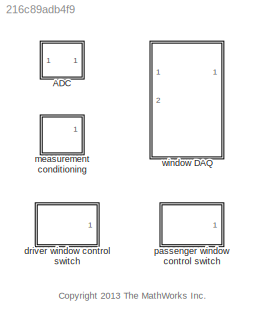
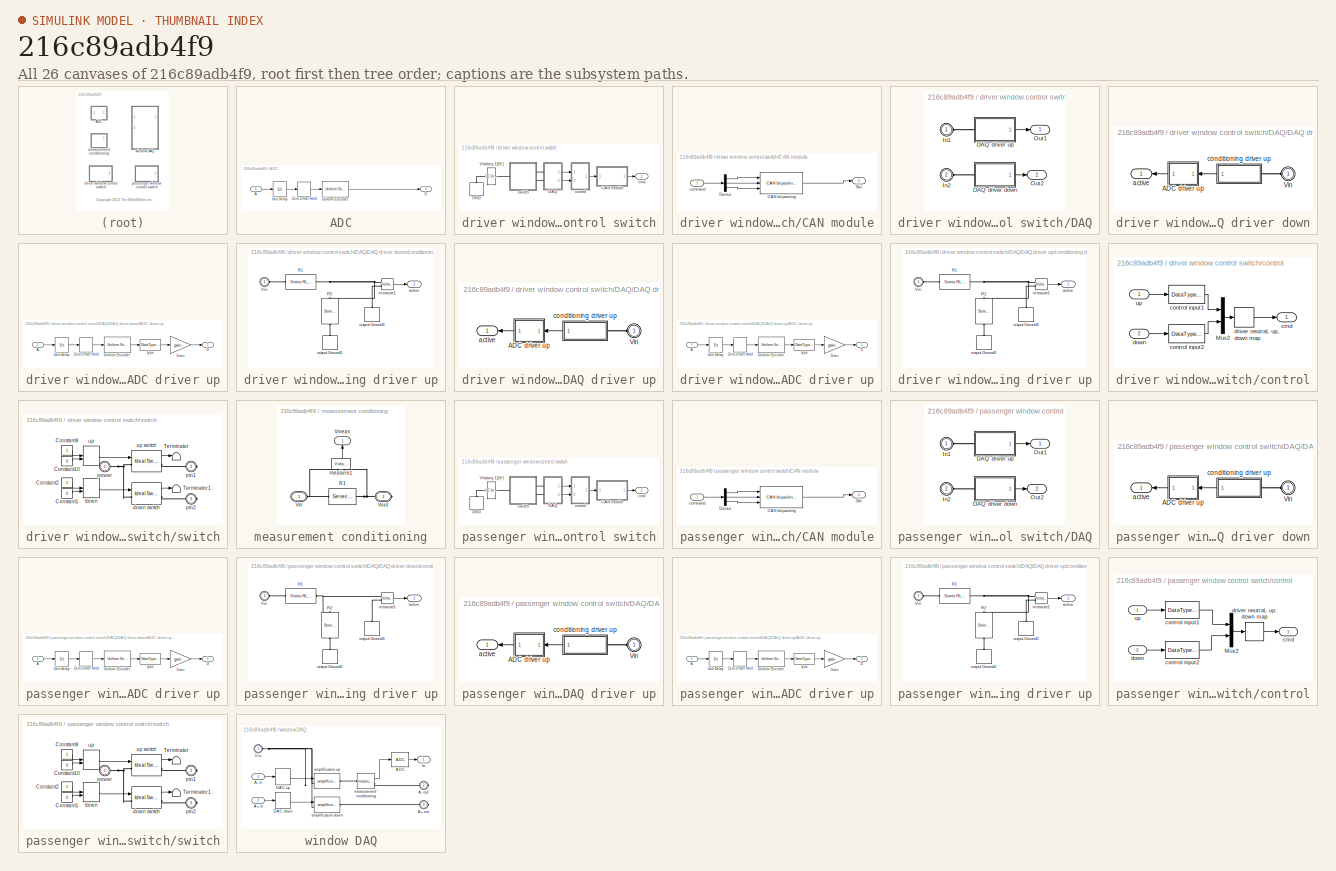
[diagram: thumbnail index - all 26 canvases of the model, root first then tree order]
MODEL slx_216c89adb4f9
KIND library
BLOCK [SubSystem] ADC
  Ports = [1, 1]
  RequestExecContextInheritance = off
BLOCK [Inport] ADC/A
  IconDisplay = Port number
BLOCK [Outport] ADC/D
  IconDisplay = Port number
BLOCK [Reference] ADC/Uniform Encoder  REF=dspquant2/Uniform
Encoder
  Ports = [1, 1]
  SourceBlock = dspquant2/Uniform\nEncoder
  SourceType = Uniform Encoder
  bits = bits
  otype = Signed integer
  peak = peak
BLOCK [UnitDelay] ADC/Unit Delay
  SampleTime = Td
BLOCK [ZeroOrderHold] ADC/Zero-Order Hold
  SampleTime = Ts
BLOCK [SubSystem] driver window control switch
  Ports = [0, 1]
  RequestExecContextInheritance = off
BLOCK [SubSystem] driver window control switch/CAN module
  Ports = [1, 1]
  RequestExecContextInheritance = off
BLOCK [Outport] driver window control switch/CAN module/3bit
  IconDisplay = Port number
BLOCK [Reference] driver window control switch/CAN module/CAN bit-packing   REF=slrtlib/CAN/Utilities/CAN bit-packing 
  Ports = [3, 1]
  SourceBlock = slrtlib/CAN/Utilities/CAN bit-packing
  SourceType = bit2double
  bitpatterns = { [0:0] [1:1] [2:2]}
BLOCK [Demux] driver window control switch/CAN module/Demux
  Outputs = 3
  Ports = [1, 3]
BLOCK [Inport] driver window control switch/CAN module/command
  IconDisplay = Port number
BLOCK [SubSystem] driver window control switch/DAQ
  Ports = [0, 2, 0, 0, 0, 2]
  RequestExecContextInheritance = off
BLOCK [SubSystem] driver window control switch/DAQ/DAQ driver down
  Ports = [0, 1, 0, 0, 0, 1]
  RequestExecContextInheritance = off
BLOCK [SubSystem] driver window control switch/DAQ/DAQ driver down/ADC driver up
  Ports = [1, 1]
  RequestExecContextInheritance = off
BLOCK [Inport] driver window control switch/DAQ/DAQ driver down/ADC driver up/A
  IconDisplay = Port number
BLOCK [Outport] driver window control switch/DAQ/DAQ driver down/ADC driver up/D
  IconDisplay = Port number
BLOCK [Gain] driver window control switch/DAQ/DAQ driver down/ADC driver up/Gain
  Gain = gain
BLOCK [Reference] driver window control switch/DAQ/DAQ driver down/ADC driver up/Uniform Encoder  REF=dspquant2/Uniform
Encoder
  Ports = [1, 1]
  SourceBlock = dspquant2/Uniform\nEncoder
  SourceType = Uniform Encoder
  bits = bits
  otype = Signed integer
  peak = peak
BLOCK [UnitDelay] driver window control switch/DAQ/DAQ driver down/ADC driver up/Unit Delay
  SampleTime = Td
BLOCK [ZeroOrderHold] driver window control switch/DAQ/DAQ driver down/ADC driver up/Zero-Order Hold
  SampleTime = Ts
BLOCK [DataTypeConversion] driver window control switch/DAQ/DAQ driver down/ADC driver up/type
  OutDataTypeStr = double
BLOCK [PMIOPort] driver window control switch/DAQ/DAQ driver down/Vin
  Port = 1
  Side = Left
BLOCK [Outport] driver window control switch/DAQ/DAQ driver down/active
  IconDisplay = Port number
BLOCK [SubSystem] driver window control switch/DAQ/DAQ driver down/conditioning driver up
  Ports = [0, 1, 0, 0, 0, 1]
  RequestExecContextInheritance = off
BLOCK [Reference] driver window control switch/DAQ/DAQ driver down/conditioning driver up/R1  REF=powerlib/Elements/Series RLC Branch
  BranchType = R
  Capacitance = 1.0
  Inductance = 1.0
  InitialCurrent = 0
  InitialVoltage = 0
  LConnTagsString = __new0
  Measurements = None
  Ports = [0, 0, 0, 0, 0, 1, 1]
  RConnTagsString = __new0
  Resistance = 6800
  SetiL0 = off
  Setx0 = off
  SourceBlock = powerlib/Elements/Series RLC Branch
  SourceType = Series RLC Branch
BLOCK [Reference] driver window control switch/DAQ/DAQ driver down/conditioning driver up/R2  REF=powerlib/Elements/Series RLC Branch
  BranchType = R
  Capacitance = 1.0
  Inductance = 1.0
  InitialCurrent = 0
  InitialVoltage = 0
  LConnTagsString = __new0
  Measurements = None
  Ports = [0, 0, 0, 0, 0, 1, 1]
  RConnTagsString = __new0
  Resistance = 4700
  SetiL0 = off
  Setx0 = off
  SourceBlock = powerlib/Elements/Series RLC Branch
  SourceType = Series RLC Branch
BLOCK [PMIOPort] driver window control switch/DAQ/DAQ driver down/conditioning driver up/Vin
  Port = 1
  Side = Left
BLOCK [Outport] driver window control switch/DAQ/DAQ driver down/conditioning driver up/active
  IconDisplay = Port number
BLOCK [Reference] driver window control switch/DAQ/DAQ driver down/conditioning driver up/measure1  REF=powerlib/Measurements/Voltage Measurement
  OutputType = Magnitude
  PSBequivalent = 0
  PhasorSimulation = off
  Ports = [0, 1, 0, 0, 0, 2]
  SourceBlock = powerlib/Measurements/Voltage Measurement
  SourceType = Voltage Measurement
BLOCK [PMComponent] driver window control switch/DAQ/DAQ driver down/conditioning driver up/output Ground2
  LConnTagsString = a
  LeftPortType = p1
  PhysicalDomain = powersysdomain
  Ports = [0, 0, 0, 0, 0, 1]
  RightPortType = p1
BLOCK [PMComponent] driver window control switch/DAQ/DAQ driver down/conditioning driver up/output Ground3
  LConnTagsString = a
  LeftPortType = p1
  PhysicalDomain = powersysdomain
  Ports = [0, 0, 0, 0, 0, 1]
  RightPortType = p1
BLOCK [SubSystem] driver window control switch/DAQ/DAQ driver up
  Ports = [0, 1, 0, 0, 0, 1]
  RequestExecContextInheritance = off
BLOCK [SubSystem] driver window control switch/DAQ/DAQ driver up/ADC driver up
  Ports = [1, 1]
  RequestExecContextInheritance = off
BLOCK [Inport] driver window control switch/DAQ/DAQ driver up/ADC driver up/A
  IconDisplay = Port number
BLOCK [Outport] driver window control switch/DAQ/DAQ driver up/ADC driver up/D
  IconDisplay = Port number
BLOCK [Gain] driver window control switch/DAQ/DAQ driver up/ADC driver up/Gain
  Gain = gain
BLOCK [Reference] driver window control switch/DAQ/DAQ driver up/ADC driver up/Uniform Encoder  REF=dspquant2/Uniform
Encoder
  Ports = [1, 1]
  SourceBlock = dspquant2/Uniform\nEncoder
  SourceType = Uniform Encoder
  bits = bits
  otype = Signed integer
  peak = peak
BLOCK [UnitDelay] driver window control switch/DAQ/DAQ driver up/ADC driver up/Unit Delay
  SampleTime = Td
BLOCK [ZeroOrderHold] driver window control switch/DAQ/DAQ driver up/ADC driver up/Zero-Order Hold
  SampleTime = Ts
BLOCK [DataTypeConversion] driver window control switch/DAQ/DAQ driver up/ADC driver up/type
  OutDataTypeStr = double
BLOCK [PMIOPort] driver window control switch/DAQ/DAQ driver up/Vin
  Port = 1
  Side = Left
BLOCK [Outport] driver window control switch/DAQ/DAQ driver up/active
  IconDisplay = Port number
BLOCK [SubSystem] driver window control switch/DAQ/DAQ driver up/conditioning driver up
  Ports = [0, 1, 0, 0, 0, 1]
  RequestExecContextInheritance = off
BLOCK [Reference] driver window control switch/DAQ/DAQ driver up/conditioning driver up/R1  REF=powerlib/Elements/Series RLC Branch
  BranchType = R
  Capacitance = 1.0
  Inductance = 1.0
  InitialCurrent = 0
  InitialVoltage = 0
  LConnTagsString = __new0
  Measurements = None
  Ports = [0, 0, 0, 0, 0, 1, 1]
  RConnTagsString = __new0
  Resistance = 6800
  SetiL0 = off
  Setx0 = off
  SourceBlock = powerlib/Elements/Series RLC Branch
  SourceType = Series RLC Branch
BLOCK [Reference] driver window control switch/DAQ/DAQ driver up/conditioning driver up/R2  REF=powerlib/Elements/Series RLC Branch
  BranchType = R
  Capacitance = 1.0
  Inductance = 1.0
  InitialCurrent = 0
  InitialVoltage = 0
  LConnTagsString = __new0
  Measurements = None
  Ports = [0, 0, 0, 0, 0, 1, 1]
  RConnTagsString = __new0
  Resistance = 4700
  SetiL0 = off
  Setx0 = off
  SourceBlock = powerlib/Elements/Series RLC Branch
  SourceType = Series RLC Branch
BLOCK [PMIOPort] driver window control switch/DAQ/DAQ driver up/conditioning driver up/Vin
  Port = 1
  Side = Left
BLOCK [Outport] driver window control switch/DAQ/DAQ driver up/conditioning driver up/active
  IconDisplay = Port number
BLOCK [Reference] driver window control switch/DAQ/DAQ driver up/conditioning driver up/measure1  REF=powerlib/Measurements/Voltage Measurement
  OutputType = Magnitude
  PSBequivalent = 0
  PhasorSimulation = off
  Ports = [0, 1, 0, 0, 0, 2]
  SourceBlock = powerlib/Measurements/Voltage Measurement
  SourceType = Voltage Measurement
BLOCK [PMComponent] driver window control switch/DAQ/DAQ driver up/conditioning driver up/output Ground2
  LConnTagsString = a
  LeftPortType = p1
  PhysicalDomain = powersysdomain
  Ports = [0, 0, 0, 0, 0, 1]
  RightPortType = p1
BLOCK [PMComponent] driver window control switch/DAQ/DAQ driver up/conditioning driver up/output Ground3
  LConnTagsString = a
  LeftPortType = p1
  PhysicalDomain = powersysdomain
  Ports = [0, 0, 0, 0, 0, 1]
  RightPortType = p1
BLOCK [PMIOPort] driver window control switch/DAQ/In1
  Port = 1
  Side = Left
BLOCK [PMIOPort] driver window control switch/DAQ/In2
  Port = 2
  Side = Left
BLOCK [Outport] driver window control switch/DAQ/Out1
  IconDisplay = Port number
BLOCK [Outport] driver window control switch/DAQ/Out2
  IconDisplay = Port number
  Port = 2
BLOCK [PMComponent] driver window control switch/GND
  LConnTagsString = a
  LeftPortType = p1
  PhysicalDomain = powersysdomain
  Ports = [0, 0, 0, 0, 0, 1]
  RightPortType = p1
BLOCK [Reference] driver window control switch/Vbattery 12[V]  REF=powerlib/Electrical
Sources/DC Voltage Source
  Amplitude = 12
  Measurements = None
  Ports = [0, 0, 0, 0, 0, 1, 1]
  SourceBlock = powerlib/Electrical\nSources/DC Voltage Source
  SourceType = DC Voltage Source
BLOCK [Outport] driver window control switch/cmd
  IconDisplay = Port number
BLOCK [SubSystem] driver window control switch/control
  Ports = [2, 1]
  RequestExecContextInheritance = off
BLOCK [Mux] driver window control switch/control/Mux2
  DisplayOption = bar
  Inputs = 2
  Ports = [2, 1]
BLOCK [Outport] driver window control switch/control/cmd
  IconDisplay = Port number
BLOCK [DataTypeConversion] driver window control switch/control/control input1
  OutDataTypeStr = boolean
BLOCK [DataTypeConversion] driver window control switch/control/control input2
  OutDataTypeStr = boolean
BLOCK [Inport] driver window control switch/control/down
  IconDisplay = Port number
  Port = 2
BLOCK [CombinatorialLogic] driver window control switch/control/driver neutral, up, down map
  TruthTable = [1 0 0;0 0 1;0 1 0;1 0 0]
BLOCK [Inport] driver window control switch/control/up
  IconDisplay = Port number
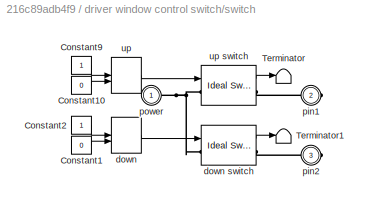
BLOCK [SubSystem] driver window control switch/switch
  Ports = [0, 0, 0, 0, 0, 1, 2]
  RequestExecContextInheritance = off
BLOCK [Constant] driver window control switch/switch/Constant1
  Value = 0
BLOCK [Constant] driver window control switch/switch/Constant10
  Value = 0
BLOCK [Constant] driver window control switch/switch/Constant2
BLOCK [Constant] driver window control switch/switch/Constant9
BLOCK [Terminator] driver window control switch/switch/Terminator
BLOCK [Terminator] driver window control switch/switch/Terminator1
BLOCK [ManualSwitch] driver window control switch/switch/down
  CurrentSetting = 0
BLOCK [Reference] driver window control switch/switch/down switch  REF=powerlib/Power
Electronics/Ideal Switch
  Cs = inf
  IC = 0
  Lon = 0
  Measurements = on
  Ports = [1, 1, 0, 0, 0, 1, 1]
  Ron = 0.01
  Rs = 1000000
  SourceBlock = powerlib/Power\nElectronics/Ideal Switch
  SourceType = Ideal Switch
BLOCK [PMIOPort] driver window control switch/switch/pin1
  Port = 2
  Side = Right
BLOCK [PMIOPort] driver window control switch/switch/pin2
  Port = 3
  Side = Right
BLOCK [PMIOPort] driver window control switch/switch/power
  Port = 1
  Side = Left
BLOCK [ManualSwitch] driver window control switch/switch/up
BLOCK [Reference] driver window control switch/switch/up switch  REF=powerlib/Power
Electronics/Ideal Switch
  Cs = inf
  IC = 0
  Lon = 0
  Measurements = on
  Ports = [1, 1, 0, 0, 0, 1, 1]
  Ron = 0.01
  Rs = 1000000
  SourceBlock = powerlib/Power\nElectronics/Ideal Switch
  SourceType = Ideal Switch
BLOCK [SubSystem] measurement conditioning
  Ports = [0, 1, 0, 0, 0, 1, 1]
  RequestExecContextInheritance = off
BLOCK [Reference] measurement conditioning/R1  REF=powerlib/Elements/Series RLC Branch
  BranchType = R
  Capacitance = 1.0
  Inductance = 1.0
  InitialCurrent = 0
  InitialVoltage = 0
  LConnTagsString = __new0
  Measurements = None
  Ports = [0, 0, 0, 0, 0, 1, 1]
  RConnTagsString = __new0
  Resistance = 0.18
  SetiL0 = off
  Setx0 = off
  SourceBlock = powerlib/Elements/Series RLC Branch
  SourceType = Series RLC Branch
BLOCK [PMIOPort] measurement conditioning/Vin
  Port = 1
  Side = Left
  Tag = PMCPort
BLOCK [Outport] measurement conditioning/Vmeas
  IconDisplay = Port number
BLOCK [PMIOPort] measurement conditioning/Vout
  Port = 2
  Side = Right
  Tag = PMCPort
BLOCK [Reference] measurement conditioning/measure1  REF=powerlib/Measurements/Voltage Measurement
  OutputType = Magnitude
  PSBequivalent = 0
  PhasorSimulation = off
  Ports = [0, 1, 0, 0, 0, 2]
  SourceBlock = powerlib/Measurements/Voltage Measurement
  SourceType = Voltage Measurement
BLOCK [SubSystem] passenger window control switch
  Ports = [0, 1]
  RequestExecContextInheritance = off
BLOCK [SubSystem] passenger window control switch/CAN module
  Ports = [1, 1]
  RequestExecContextInheritance = off
BLOCK [Outport] passenger window control switch/CAN module/3bit
  IconDisplay = Port number
BLOCK [Reference] passenger window control switch/CAN module/CAN bit-packing   REF=slrtlib/CAN/Utilities/CAN bit-packing 
  Ports = [3, 1]
  SourceBlock = slrtlib/CAN/Utilities/CAN bit-packing
  SourceType = bit2double
  bitpatterns = { [0:0] [1:1] [2:2]}
BLOCK [Demux] passenger window control switch/CAN module/Demux
  Outputs = 3
  Ports = [1, 3]
BLOCK [Inport] passenger window control switch/CAN module/command
  IconDisplay = Port number
BLOCK [SubSystem] passenger window control switch/DAQ
  Ports = [0, 2, 0, 0, 0, 2]
  RequestExecContextInheritance = off
BLOCK [SubSystem] passenger window control switch/DAQ/DAQ driver down
  Ports = [0, 1, 0, 0, 0, 1]
  RequestExecContextInheritance = off
BLOCK [SubSystem] passenger window control switch/DAQ/DAQ driver down/ADC driver up
  Ports = [1, 1]
  RequestExecContextInheritance = off
BLOCK [Inport] passenger window control switch/DAQ/DAQ driver down/ADC driver up/A
  IconDisplay = Port number
BLOCK [Outport] passenger window control switch/DAQ/DAQ driver down/ADC driver up/D
  IconDisplay = Port number
BLOCK [Gain] passenger window control switch/DAQ/DAQ driver down/ADC driver up/Gain
  Gain = gain
BLOCK [Reference] passenger window control switch/DAQ/DAQ driver down/ADC driver up/Uniform Encoder  REF=dspquant2/Uniform
Encoder
  Ports = [1, 1]
  SourceBlock = dspquant2/Uniform\nEncoder
  SourceType = Uniform Encoder
  bits = bits
  otype = Signed integer
  peak = peak
BLOCK [UnitDelay] passenger window control switch/DAQ/DAQ driver down/ADC driver up/Unit Delay
  SampleTime = Td
BLOCK [ZeroOrderHold] passenger window control switch/DAQ/DAQ driver down/ADC driver up/Zero-Order Hold
  SampleTime = Ts
BLOCK [DataTypeConversion] passenger window control switch/DAQ/DAQ driver down/ADC driver up/type
  OutDataTypeStr = double
BLOCK [PMIOPort] passenger window control switch/DAQ/DAQ driver down/Vin
  Port = 1
  Side = Left
BLOCK [Outport] passenger window control switch/DAQ/DAQ driver down/active
  IconDisplay = Port number
BLOCK [SubSystem] passenger window control switch/DAQ/DAQ driver down/conditioning driver up
  Ports = [0, 1, 0, 0, 0, 1]
  RequestExecContextInheritance = off
BLOCK [Reference] passenger window control switch/DAQ/DAQ driver down/conditioning driver up/R1  REF=powerlib/Elements/Series RLC Branch
  BranchType = R
  Capacitance = 1.0
  Inductance = 1.0
  InitialCurrent = 0
  InitialVoltage = 0
  LConnTagsString = __new0
  Measurements = None
  Ports = [0, 0, 0, 0, 0, 1, 1]
  RConnTagsString = __new0
  Resistance = 6800
  SetiL0 = off
  Setx0 = off
  SourceBlock = powerlib/Elements/Series RLC Branch
  SourceType = Series RLC Branch
BLOCK [Reference] passenger window control switch/DAQ/DAQ driver down/conditioning driver up/R2  REF=powerlib/Elements/Series RLC Branch
  BranchType = R
  Capacitance = 1.0
  Inductance = 1.0
  InitialCurrent = 0
  InitialVoltage = 0
  LConnTagsString = __new0
  Measurements = None
  Ports = [0, 0, 0, 0, 0, 1, 1]
  RConnTagsString = __new0
  Resistance = 4700
  SetiL0 = off
  Setx0 = off
  SourceBlock = powerlib/Elements/Series RLC Branch
  SourceType = Series RLC Branch
BLOCK [PMIOPort] passenger window control switch/DAQ/DAQ driver down/conditioning driver up/Vin
  Port = 1
  Side = Left
BLOCK [Outport] passenger window control switch/DAQ/DAQ driver down/conditioning driver up/active
  IconDisplay = Port number
BLOCK [Reference] passenger window control switch/DAQ/DAQ driver down/conditioning driver up/measure1  REF=powerlib/Measurements/Voltage Measurement
  OutputType = Magnitude
  PSBequivalent = 0
  PhasorSimulation = off
  Ports = [0, 1, 0, 0, 0, 2]
  SourceBlock = powerlib/Measurements/Voltage Measurement
  SourceType = Voltage Measurement
BLOCK [PMComponent] passenger window control switch/DAQ/DAQ driver down/conditioning driver up/output Ground2
  LConnTagsString = a
  LeftPortType = p1
  PhysicalDomain = powersysdomain
  Ports = [0, 0, 0, 0, 0, 1]
  RightPortType = p1
BLOCK [PMComponent] passenger window control switch/DAQ/DAQ driver down/conditioning driver up/output Ground3
  LConnTagsString = a
  LeftPortType = p1
  PhysicalDomain = powersysdomain
  Ports = [0, 0, 0, 0, 0, 1]
  RightPortType = p1
BLOCK [SubSystem] passenger window control switch/DAQ/DAQ driver up
  Ports = [0, 1, 0, 0, 0, 1]
  RequestExecContextInheritance = off
BLOCK [SubSystem] passenger window control switch/DAQ/DAQ driver up/ADC driver up
  Ports = [1, 1]
  RequestExecContextInheritance = off
BLOCK [Inport] passenger window control switch/DAQ/DAQ driver up/ADC driver up/A
  IconDisplay = Port number
BLOCK [Outport] passenger window control switch/DAQ/DAQ driver up/ADC driver up/D
  IconDisplay = Port number
BLOCK [Gain] passenger window control switch/DAQ/DAQ driver up/ADC driver up/Gain
  Gain = gain
BLOCK [Reference] passenger window control switch/DAQ/DAQ driver up/ADC driver up/Uniform Encoder  REF=dspquant2/Uniform
Encoder
  Ports = [1, 1]
  SourceBlock = dspquant2/Uniform\nEncoder
  SourceType = Uniform Encoder
  bits = bits
  otype = Signed integer
  peak = peak
BLOCK [UnitDelay] passenger window control switch/DAQ/DAQ driver up/ADC driver up/Unit Delay
  SampleTime = Td
BLOCK [ZeroOrderHold] passenger window control switch/DAQ/DAQ driver up/ADC driver up/Zero-Order Hold
  SampleTime = Ts
BLOCK [DataTypeConversion] passenger window control switch/DAQ/DAQ driver up/ADC driver up/type
  OutDataTypeStr = double
BLOCK [PMIOPort] passenger window control switch/DAQ/DAQ driver up/Vin
  Port = 1
  Side = Left
BLOCK [Outport] passenger window control switch/DAQ/DAQ driver up/active
  IconDisplay = Port number
BLOCK [SubSystem] passenger window control switch/DAQ/DAQ driver up/conditioning driver up
  Ports = [0, 1, 0, 0, 0, 1]
  RequestExecContextInheritance = off
BLOCK [Reference] passenger window control switch/DAQ/DAQ driver up/conditioning driver up/R1  REF=powerlib/Elements/Series RLC Branch
  BranchType = R
  Capacitance = 1.0
  Inductance = 1.0
  InitialCurrent = 0
  InitialVoltage = 0
  LConnTagsString = __new0
  Measurements = None
  Ports = [0, 0, 0, 0, 0, 1, 1]
  RConnTagsString = __new0
  Resistance = 6800
  SetiL0 = off
  Setx0 = off
  SourceBlock = powerlib/Elements/Series RLC Branch
  SourceType = Series RLC Branch
BLOCK [Reference] passenger window control switch/DAQ/DAQ driver up/conditioning driver up/R2  REF=powerlib/Elements/Series RLC Branch
  BranchType = R
  Capacitance = 1.0
  Inductance = 1.0
  InitialCurrent = 0
  InitialVoltage = 0
  LConnTagsString = __new0
  Measurements = None
  Ports = [0, 0, 0, 0, 0, 1, 1]
  RConnTagsString = __new0
  Resistance = 4700
  SetiL0 = off
  Setx0 = off
  SourceBlock = powerlib/Elements/Series RLC Branch
  SourceType = Series RLC Branch
BLOCK [PMIOPort] passenger window control switch/DAQ/DAQ driver up/conditioning driver up/Vin
  Port = 1
  Side = Left
BLOCK [Outport] passenger window control switch/DAQ/DAQ driver up/conditioning driver up/active
  IconDisplay = Port number
BLOCK [Reference] passenger window control switch/DAQ/DAQ driver up/conditioning driver up/measure1  REF=powerlib/Measurements/Voltage Measurement
  OutputType = Magnitude
  PSBequivalent = 0
  PhasorSimulation = off
  Ports = [0, 1, 0, 0, 0, 2]
  SourceBlock = powerlib/Measurements/Voltage Measurement
  SourceType = Voltage Measurement
BLOCK [PMComponent] passenger window control switch/DAQ/DAQ driver up/conditioning driver up/output Ground2
  LConnTagsString = a
  LeftPortType = p1
  PhysicalDomain = powersysdomain
  Ports = [0, 0, 0, 0, 0, 1]
  RightPortType = p1
BLOCK [PMComponent] passenger window control switch/DAQ/DAQ driver up/conditioning driver up/output Ground3
  LConnTagsString = a
  LeftPortType = p1
  PhysicalDomain = powersysdomain
  Ports = [0, 0, 0, 0, 0, 1]
  RightPortType = p1
BLOCK [PMIOPort] passenger window control switch/DAQ/In1
  Port = 1
  Side = Left
BLOCK [PMIOPort] passenger window control switch/DAQ/In2
  Port = 2
  Side = Left
BLOCK [Outport] passenger window control switch/DAQ/Out1
  IconDisplay = Port number
BLOCK [Outport] passenger window control switch/DAQ/Out2
  IconDisplay = Port number
  Port = 2
BLOCK [PMComponent] passenger window control switch/GND
  LConnTagsString = a
  LeftPortType = p1
  PhysicalDomain = powersysdomain
  Ports = [0, 0, 0, 0, 0, 1]
  RightPortType = p1
BLOCK [Reference] passenger window control switch/Vbattery 12[V]  REF=powerlib/Electrical
Sources/DC Voltage Source
  Amplitude = 12
  Measurements = None
  Ports = [0, 0, 0, 0, 0, 1, 1]
  SourceBlock = powerlib/Electrical\nSources/DC Voltage Source
  SourceType = DC Voltage Source
BLOCK [Outport] passenger window control switch/cmd
  IconDisplay = Port number
BLOCK [SubSystem] passenger window control switch/control
  Ports = [2, 1]
  RequestExecContextInheritance = off
BLOCK [Mux] passenger window control switch/control/Mux2
  DisplayOption = bar
  Inputs = 2
  Ports = [2, 1]
BLOCK [Outport] passenger window control switch/control/cmd
  IconDisplay = Port number
BLOCK [DataTypeConversion] passenger window control switch/control/control input1
  OutDataTypeStr = boolean
BLOCK [DataTypeConversion] passenger window control switch/control/control input2
  OutDataTypeStr = boolean
BLOCK [Inport] passenger window control switch/control/down
  IconDisplay = Port number
  Port = 2
BLOCK [CombinatorialLogic] passenger window control switch/control/driver neutral, up, down map
  TruthTable = [1 0 0;0 0 1;0 1 0;1 0 0]
BLOCK [Inport] passenger window control switch/control/up
  IconDisplay = Port number
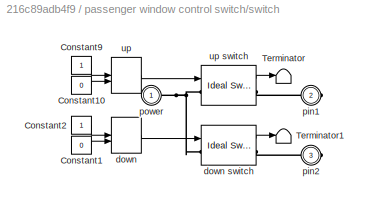
BLOCK [SubSystem] passenger window control switch/switch
  Ports = [0, 0, 0, 0, 0, 1, 2]
  RequestExecContextInheritance = off
BLOCK [Constant] passenger window control switch/switch/Constant1
  Value = 0
BLOCK [Constant] passenger window control switch/switch/Constant10
  Value = 0
BLOCK [Constant] passenger window control switch/switch/Constant2
BLOCK [Constant] passenger window control switch/switch/Constant9
BLOCK [Terminator] passenger window control switch/switch/Terminator
BLOCK [Terminator] passenger window control switch/switch/Terminator1
BLOCK [ManualSwitch] passenger window control switch/switch/down
  CurrentSetting = 0
BLOCK [Reference] passenger window control switch/switch/down switch  REF=powerlib/Power
Electronics/Ideal Switch
  Cs = inf
  IC = 0
  Lon = 0
  Measurements = on
  Ports = [1, 1, 0, 0, 0, 1, 1]
  Ron = 0.01
  Rs = 1000000
  SourceBlock = powerlib/Power\nElectronics/Ideal Switch
  SourceType = Ideal Switch
BLOCK [PMIOPort] passenger window control switch/switch/pin1
  Port = 2
  Side = Right
BLOCK [PMIOPort] passenger window control switch/switch/pin2
  Port = 3
  Side = Right
BLOCK [PMIOPort] passenger window control switch/switch/power
  Port = 1
  Side = Left
BLOCK [ManualSwitch] passenger window control switch/switch/up
  CurrentSetting = 0
BLOCK [Reference] passenger window control switch/switch/up switch  REF=powerlib/Power
Electronics/Ideal Switch
  Cs = inf
  IC = 0
  Lon = 0
  Measurements = on
  Ports = [1, 1, 0, 0, 0, 1, 1]
  Ron = 0.01
  Rs = 1000000
  SourceBlock = powerlib/Power\nElectronics/Ideal Switch
  SourceType = Ideal Switch
BLOCK [SubSystem] window DAQ
  Ports = [2, 1, 0, 0, 0, 1, 2]
  RequestExecContextInheritance = off
BLOCK [Inport] window DAQ/A+ in
  IconDisplay = Port number
  Port = 2
BLOCK [PMIOPort] window DAQ/A+ out
  Port = 3
  Side = Right
BLOCK [Inport] window DAQ/A- in
  IconDisplay = Port number
BLOCK [PMIOPort] window DAQ/A- out
  Port = 2
  Side = Right
BLOCK [Reference] window DAQ/ADC  REF=slexPowerWindowDSPLib/ADC
  Ports = [1, 1]
  SourceBlock = slexPowerWindowDSPLib/ADC
  SourceType = AD Converter
  Td = 0.005
  Ts = 0.01
  bits = 8
  peak = 3.5
BLOCK [ZeroOrderHold] window DAQ/DAC down
  SampleTime = 0.01
BLOCK [ZeroOrderHold] window DAQ/DAC up
  SampleTime = 0.01
BLOCK [Outport] window DAQ/Ia
  IconDisplay = Port number
BLOCK [PMIOPort] window DAQ/Vcc
  Port = 1
  Side = Left
BLOCK [Reference] window DAQ/amplification down  REF=slexPowerWindowPHYSLib/amplification
down
  Ports = [1, 0, 0, 0, 0, 1, 1]
  SourceBlock = slexPowerWindowPHYSLib/amplification\ndown
  SourceType = SubSystem
BLOCK [Reference] window DAQ/amplification up  REF=slexPowerWindowPHYSLib/amplification
up
  Ports = [1, 0, 0, 0, 0, 1, 1]
  SourceBlock = slexPowerWindowPHYSLib/amplification\nup
  SourceType = SubSystem
BLOCK [Reference] window DAQ/measurement conditioning  REF=slexPowerWindowDSPLib/measurement
conditioning
  Ports = [0, 1, 0, 0, 0, 1, 1]
  SourceBlock = slexPowerWindowDSPLib/measurement\nconditioning
  SourceType = SubSystem
ANNOTATION (root): <copyright redacted>
LINE ADC/A:1 -> ADC/Unit Delay:1
LINE ADC/Uniform Encoder:1 -> ADC/D:1
LINE ADC/Unit Delay:1 -> ADC/Zero-Order Hold:1
LINE ADC/Zero-Order Hold:1 -> ADC/Uniform Encoder:1
LINE driver window control switch/CAN module/CAN bit-packing :1 -> driver window control switch/CAN module/3bit:1
LINE driver window control switch/CAN module/Demux:1 -> driver window control switch/CAN module/CAN bit-packing :1
LINE driver window control switch/CAN module/Demux:2 -> driver window control switch/CAN module/CAN bit-packing :2
LINE driver window control switch/CAN module/Demux:3 -> driver window control switch/CAN module/CAN bit-packing :3
LINE driver window control switch/CAN module/command:1 -> driver window control switch/CAN module/Demux:1
LINE driver window control switch/CAN module:1 -> driver window control switch/cmd:1
LINE driver window control switch/DAQ/DAQ driver down/ADC driver up/A:1 -> driver window control switch/DAQ/DAQ driver down/ADC driver up/Unit Delay:1
LINE driver window control switch/DAQ/DAQ driver down/ADC driver up/Gain:1 -> driver window control switch/DAQ/DAQ driver down/ADC driver up/D:1
LINE driver window control switch/DAQ/DAQ driver down/ADC driver up/Uniform Encoder:1 -> driver window control switch/DAQ/DAQ driver down/ADC driver up/type:1
LINE driver window control switch/DAQ/DAQ driver down/ADC driver up/Unit Delay:1 -> driver window control switch/DAQ/DAQ driver down/ADC driver up/Zero-Order Hold:1
LINE driver window control switch/DAQ/DAQ driver down/ADC driver up/Zero-Order Hold:1 -> driver window control switch/DAQ/DAQ driver down/ADC driver up/Uniform Encoder:1
LINE driver window control switch/DAQ/DAQ driver down/ADC driver up/type:1 -> driver window control switch/DAQ/DAQ driver down/ADC driver up/Gain:1
LINE driver window control switch/DAQ/DAQ driver down/ADC driver up:1 -> driver window control switch/DAQ/DAQ driver down/active:1
LINE driver window control switch/DAQ/DAQ driver down/conditioning driver up/measure1:1 -> driver window control switch/DAQ/DAQ driver down/conditioning driver up/active:1
LINE driver window control switch/DAQ/DAQ driver down/conditioning driver up:1 -> driver window control switch/DAQ/DAQ driver down/ADC driver up:1
LINE driver window control switch/DAQ/DAQ driver down:1 -> driver window control switch/DAQ/Out2:1
LINE driver window control switch/DAQ/DAQ driver up/ADC driver up/A:1 -> driver window control switch/DAQ/DAQ driver up/ADC driver up/Unit Delay:1
LINE driver window control switch/DAQ/DAQ driver up/ADC driver up/Gain:1 -> driver window control switch/DAQ/DAQ driver up/ADC driver up/D:1
LINE driver window control switch/DAQ/DAQ driver up/ADC driver up/Uniform Encoder:1 -> driver window control switch/DAQ/DAQ driver up/ADC driver up/type:1
LINE driver window control switch/DAQ/DAQ driver up/ADC driver up/Unit Delay:1 -> driver window control switch/DAQ/DAQ driver up/ADC driver up/Zero-Order Hold:1
LINE driver window control switch/DAQ/DAQ driver up/ADC driver up/Zero-Order Hold:1 -> driver window control switch/DAQ/DAQ driver up/ADC driver up/Uniform Encoder:1
LINE driver window control switch/DAQ/DAQ driver up/ADC driver up/type:1 -> driver window control switch/DAQ/DAQ driver up/ADC driver up/Gain:1
LINE driver window control switch/DAQ/DAQ driver up/ADC driver up:1 -> driver window control switch/DAQ/DAQ driver up/active:1
LINE driver window control switch/DAQ/DAQ driver up/conditioning driver up/measure1:1 -> driver window control switch/DAQ/DAQ driver up/conditioning driver up/active:1
LINE driver window control switch/DAQ/DAQ driver up/conditioning driver up:1 -> driver window control switch/DAQ/DAQ driver up/ADC driver up:1
LINE driver window control switch/DAQ/DAQ driver up:1 -> driver window control switch/DAQ/Out1:1
LINE driver window control switch/DAQ:1 -> driver window control switch/control:1
LINE driver window control switch/DAQ:2 -> driver window control switch/control:2
LINE driver window control switch/control/Mux2:1 -> driver window control switch/control/driver neutral, up, down map:1
LINE driver window control switch/control/control input1:1 -> driver window control switch/control/Mux2:1
LINE driver window control switch/control/control input2:1 -> driver window control switch/control/Mux2:2
LINE driver window control switch/control/down:1 -> driver window control switch/control/control input2:1
LINE driver window control switch/control/driver neutral, up, down map:1 -> driver window control switch/control/cmd:1
LINE driver window control switch/control/up:1 -> driver window control switch/control/control input1:1
LINE driver window control switch/control:1 -> driver window control switch/CAN module:1
LINE driver window control switch/switch/Constant10:1 -> driver window control switch/switch/up:2
LINE driver window control switch/switch/Constant1:1 -> driver window control switch/switch/down:2
LINE driver window control switch/switch/Constant2:1 -> driver window control switch/switch/down:1
LINE driver window control switch/switch/Constant9:1 -> driver window control switch/switch/up:1
LINE driver window control switch/switch/down switch:1 -> driver window control switch/switch/Terminator1:1
LINE driver window control switch/switch/down:1 -> driver window control switch/switch/down switch:1
LINE driver window control switch/switch/up switch:1 -> driver window control switch/switch/Terminator:1
LINE driver window control switch/switch/up:1 -> driver window control switch/switch/up switch:1
LINE measurement conditioning/measure1:1 -> measurement conditioning/Vmeas:1
LINE passenger window control switch/CAN module/CAN bit-packing :1 -> passenger window control switch/CAN module/3bit:1
LINE passenger window control switch/CAN module/Demux:1 -> passenger window control switch/CAN module/CAN bit-packing :1
LINE passenger window control switch/CAN module/Demux:2 -> passenger window control switch/CAN module/CAN bit-packing :2
LINE passenger window control switch/CAN module/Demux:3 -> passenger window control switch/CAN module/CAN bit-packing :3
LINE passenger window control switch/CAN module/command:1 -> passenger window control switch/CAN module/Demux:1
LINE passenger window control switch/CAN module:1 -> passenger window control switch/cmd:1
LINE passenger window control switch/DAQ/DAQ driver down/ADC driver up/A:1 -> passenger window control switch/DAQ/DAQ driver down/ADC driver up/Unit Delay:1
LINE passenger window control switch/DAQ/DAQ driver down/ADC driver up/Gain:1 -> passenger window control switch/DAQ/DAQ driver down/ADC driver up/D:1
LINE passenger window control switch/DAQ/DAQ driver down/ADC driver up/Uniform Encoder:1 -> passenger window control switch/DAQ/DAQ driver down/ADC driver up/type:1
LINE passenger window control switch/DAQ/DAQ driver down/ADC driver up/Unit Delay:1 -> passenger window control switch/DAQ/DAQ driver down/ADC driver up/Zero-Order Hold:1
LINE passenger window control switch/DAQ/DAQ driver down/ADC driver up/Zero-Order Hold:1 -> passenger window control switch/DAQ/DAQ driver down/ADC driver up/Uniform Encoder:1
LINE passenger window control switch/DAQ/DAQ driver down/ADC driver up/type:1 -> passenger window control switch/DAQ/DAQ driver down/ADC driver up/Gain:1
LINE passenger window control switch/DAQ/DAQ driver down/ADC driver up:1 -> passenger window control switch/DAQ/DAQ driver down/active:1
LINE passenger window control switch/DAQ/DAQ driver down/conditioning driver up/measure1:1 -> passenger window control switch/DAQ/DAQ driver down/conditioning driver up/active:1
LINE passenger window control switch/DAQ/DAQ driver down/conditioning driver up:1 -> passenger window control switch/DAQ/DAQ driver down/ADC driver up:1
LINE passenger window control switch/DAQ/DAQ driver down:1 -> passenger window control switch/DAQ/Out2:1
LINE passenger window control switch/DAQ/DAQ driver up/ADC driver up/A:1 -> passenger window control switch/DAQ/DAQ driver up/ADC driver up/Unit Delay:1
LINE passenger window control switch/DAQ/DAQ driver up/ADC driver up/Gain:1 -> passenger window control switch/DAQ/DAQ driver up/ADC driver up/D:1
LINE passenger window control switch/DAQ/DAQ driver up/ADC driver up/Uniform Encoder:1 -> passenger window control switch/DAQ/DAQ driver up/ADC driver up/type:1
LINE passenger window control switch/DAQ/DAQ driver up/ADC driver up/Unit Delay:1 -> passenger window control switch/DAQ/DAQ driver up/ADC driver up/Zero-Order Hold:1
LINE passenger window control switch/DAQ/DAQ driver up/ADC driver up/Zero-Order Hold:1 -> passenger window control switch/DAQ/DAQ driver up/ADC driver up/Uniform Encoder:1
LINE passenger window control switch/DAQ/DAQ driver up/ADC driver up/type:1 -> passenger window control switch/DAQ/DAQ driver up/ADC driver up/Gain:1
LINE passenger window control switch/DAQ/DAQ driver up/ADC driver up:1 -> passenger window control switch/DAQ/DAQ driver up/active:1
LINE passenger window control switch/DAQ/DAQ driver up/conditioning driver up/measure1:1 -> passenger window control switch/DAQ/DAQ driver up/conditioning driver up/active:1
LINE passenger window control switch/DAQ/DAQ driver up/conditioning driver up:1 -> passenger window control switch/DAQ/DAQ driver up/ADC driver up:1
LINE passenger window control switch/DAQ/DAQ driver up:1 -> passenger window control switch/DAQ/Out1:1
LINE passenger window control switch/DAQ:1 -> passenger window control switch/control:1
LINE passenger window control switch/DAQ:2 -> passenger window control switch/control:2
LINE passenger window control switch/control/Mux2:1 -> passenger window control switch/control/driver neutral, up, down map:1
LINE passenger window control switch/control/control input1:1 -> passenger window control switch/control/Mux2:1
LINE passenger window control switch/control/control input2:1 -> passenger window control switch/control/Mux2:2
LINE passenger window control switch/control/down:1 -> passenger window control switch/control/control input2:1
LINE passenger window control switch/control/driver neutral, up, down map:1 -> passenger window control switch/control/cmd:1
LINE passenger window control switch/control/up:1 -> passenger window control switch/control/control input1:1
LINE passenger window control switch/control:1 -> passenger window control switch/CAN module:1
LINE passenger window control switch/switch/Constant10:1 -> passenger window control switch/switch/up:2
LINE passenger window control switch/switch/Constant1:1 -> passenger window control switch/switch/down:2
LINE passenger window control switch/switch/Constant2:1 -> passenger window control switch/switch/down:1
LINE passenger window control switch/switch/Constant9:1 -> passenger window control switch/switch/up:1
LINE passenger window control switch/switch/down switch:1 -> passenger window control switch/switch/Terminator1:1
LINE passenger window control switch/switch/down:1 -> passenger window control switch/switch/down switch:1
LINE passenger window control switch/switch/up switch:1 -> passenger window control switch/switch/Terminator:1
LINE passenger window control switch/switch/up:1 -> passenger window control switch/switch/up switch:1
LINE window DAQ/A+ in:1 -> window DAQ/DAC down:1
LINE window DAQ/A- in:1 -> window DAQ/DAC up:1
LINE window DAQ/ADC:1 -> window DAQ/Ia:1
LINE window DAQ/DAC down:1 -> window DAQ/amplification down:1
LINE window DAQ/DAC up:1 -> window DAQ/amplification up:1
LINE window DAQ/measurement conditioning:1 -> window DAQ/ADC:1
PLINE driver window control switch/DAQ/DAQ driver down/Vin:RConn1 -- driver window control switch/DAQ/DAQ driver down/conditioning driver up:LConn1
PLINE driver window control switch/DAQ/DAQ driver down/conditioning driver up/R1:LConn1 -- driver window control switch/DAQ/DAQ driver down/conditioning driver up/Vin:RConn1
PNET net1: driver window control switch/DAQ/DAQ driver down/conditioning driver up/R1:RConn1 -- driver window control switch/DAQ/DAQ driver down/conditioning driver up/R2:RConn1 -- driver window control switch/DAQ/DAQ driver down/conditioning driver up/measure1:LConn1
PLINE driver window control switch/DAQ/DAQ driver down/conditioning driver up/R2:LConn1 -- driver window control switch/DAQ/DAQ driver down/conditioning driver up/output Ground2:LConn1
PLINE driver window control switch/DAQ/DAQ driver down/conditioning driver up/measure1:LConn2 -- driver window control switch/DAQ/DAQ driver down/conditioning driver up/output Ground3:LConn1
PLINE driver window control switch/DAQ/DAQ driver down:LConn1 -- driver window control switch/DAQ/In2:RConn1
PLINE driver window control switch/DAQ/DAQ driver up/Vin:RConn1 -- driver window control switch/DAQ/DAQ driver up/conditioning driver up:LConn1
PLINE driver window control switch/DAQ/DAQ driver up/conditioning driver up/R1:LConn1 -- driver window control switch/DAQ/DAQ driver up/conditioning driver up/Vin:RConn1
PNET net2: driver window control switch/DAQ/DAQ driver up/conditioning driver up/R1:RConn1 -- driver window control switch/DAQ/DAQ driver up/conditioning driver up/R2:RConn1 -- driver window control switch/DAQ/DAQ driver up/conditioning driver up/measure1:LConn1
PLINE driver window control switch/DAQ/DAQ driver up/conditioning driver up/R2:LConn1 -- driver window control switch/DAQ/DAQ driver up/conditioning driver up/output Ground2:LConn1
PLINE driver window control switch/DAQ/DAQ driver up/conditioning driver up/measure1:LConn2 -- driver window control switch/DAQ/DAQ driver up/conditioning driver up/output Ground3:LConn1
PLINE driver window control switch/DAQ/DAQ driver up:LConn1 -- driver window control switch/DAQ/In1:RConn1
PLINE driver window control switch/DAQ:LConn1 -- driver window control switch/switch:RConn1
PLINE driver window control switch/DAQ:LConn2 -- driver window control switch/switch:RConn2
PLINE driver window control switch/GND:LConn1 -- driver window control switch/Vbattery 12[V]:LConn1
PLINE driver window control switch/Vbattery 12[V]:RConn1 -- driver window control switch/switch:LConn1
PNET net3: driver window control switch/switch/down switch:LConn1 -- driver window control switch/switch/power:RConn1 -- driver window control switch/switch/up switch:LConn1
PLINE driver window control switch/switch/down switch:RConn1 -- driver window control switch/switch/pin2:RConn1
PLINE driver window control switch/switch/pin1:RConn1 -- driver window control switch/switch/up switch:RConn1
PNET net4: measurement conditioning/R1:LConn1 -- measurement conditioning/Vin:RConn1 -- measurement conditioning/measure1:LConn1
PNET net5: measurement conditioning/R1:RConn1 -- measurement conditioning/Vout:RConn1 -- measurement conditioning/measure1:LConn2
PLINE passenger window control switch/DAQ/DAQ driver down/Vin:RConn1 -- passenger window control switch/DAQ/DAQ driver down/conditioning driver up:LConn1
PLINE passenger window control switch/DAQ/DAQ driver down/conditioning driver up/R1:LConn1 -- passenger window control switch/DAQ/DAQ driver down/conditioning driver up/Vin:RConn1
PNET net6: passenger window control switch/DAQ/DAQ driver down/conditioning driver up/R1:RConn1 -- passenger window control switch/DAQ/DAQ driver down/conditioning driver up/R2:RConn1 -- passenger window control switch/DAQ/DAQ driver down/conditioning driver up/measure1:LConn1
PLINE passenger window control switch/DAQ/DAQ driver down/conditioning driver up/R2:LConn1 -- passenger window control switch/DAQ/DAQ driver down/conditioning driver up/output Ground2:LConn1
PLINE passenger window control switch/DAQ/DAQ driver down/conditioning driver up/measure1:LConn2 -- passenger window control switch/DAQ/DAQ driver down/conditioning driver up/output Ground3:LConn1
PLINE passenger window control switch/DAQ/DAQ driver down:LConn1 -- passenger window control switch/DAQ/In2:RConn1
PLINE passenger window control switch/DAQ/DAQ driver up/Vin:RConn1 -- passenger window control switch/DAQ/DAQ driver up/conditioning driver up:LConn1
PLINE passenger window control switch/DAQ/DAQ driver up/conditioning driver up/R1:LConn1 -- passenger window control switch/DAQ/DAQ driver up/conditioning driver up/Vin:RConn1
PNET net7: passenger window control switch/DAQ/DAQ driver up/conditioning driver up/R1:RConn1 -- passenger window control switch/DAQ/DAQ driver up/conditioning driver up/R2:RConn1 -- passenger window control switch/DAQ/DAQ driver up/conditioning driver up/measure1:LConn1
PLINE passenger window control switch/DAQ/DAQ driver up/conditioning driver up/R2:LConn1 -- passenger window control switch/DAQ/DAQ driver up/conditioning driver up/output Ground2:LConn1
PLINE passenger window control switch/DAQ/DAQ driver up/conditioning driver up/measure1:LConn2 -- passenger window control switch/DAQ/DAQ driver up/conditioning driver up/output Ground3:LConn1
PLINE passenger window control switch/DAQ/DAQ driver up:LConn1 -- passenger window control switch/DAQ/In1:RConn1
PLINE passenger window control switch/DAQ:LConn1 -- passenger window control switch/switch:RConn1
PLINE passenger window control switch/DAQ:LConn2 -- passenger window control switch/switch:RConn2
PLINE passenger window control switch/GND:LConn1 -- passenger window control switch/Vbattery 12[V]:LConn1
PLINE passenger window control switch/Vbattery 12[V]:RConn1 -- passenger window control switch/switch:LConn1
PNET net8: passenger window control switch/switch/down switch:LConn1 -- passenger window control switch/switch/power:RConn1 -- passenger window control switch/switch/up switch:LConn1
PLINE passenger window control switch/switch/down switch:RConn1 -- passenger window control switch/switch/pin2:RConn1
PLINE passenger window control switch/switch/pin1:RConn1 -- passenger window control switch/switch/up switch:RConn1
PLINE window DAQ/A+ out:RConn1 -- window DAQ/amplification down:RConn1
PLINE window DAQ/A- out:RConn1 -- window DAQ/measurement conditioning:RConn1
PNET net9: window DAQ/Vcc:RConn1 -- window DAQ/amplification down:LConn1 -- window DAQ/amplification up:LConn1
PLINE window DAQ/amplification up:RConn1 -- window DAQ/measurement conditioning:LConn1
note: PNET lines group multi-terminal physical nets as a canonical sorted terminal list (undirected conserving connections); 2-terminal nets keep the pairwise PLINE form
